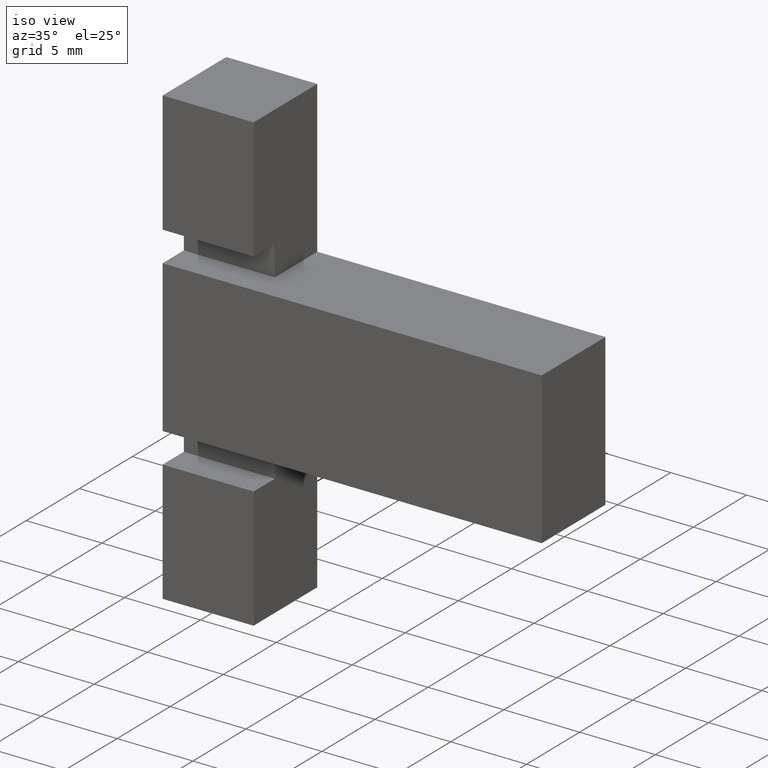
[diagram: clean part render]
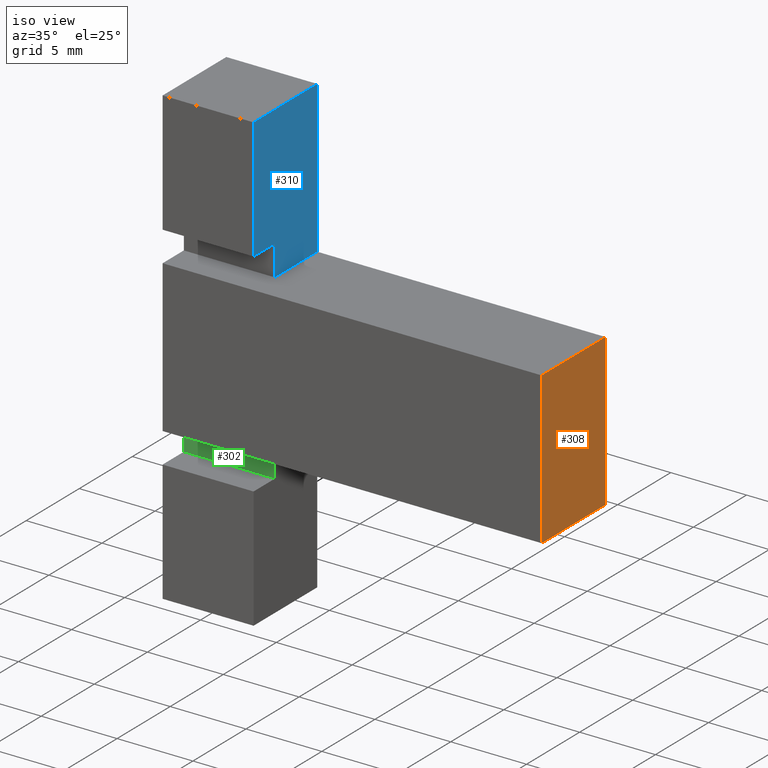
[diagram: same view with three faces highlighted in distinct colors, each labeled with its STEP entity id]
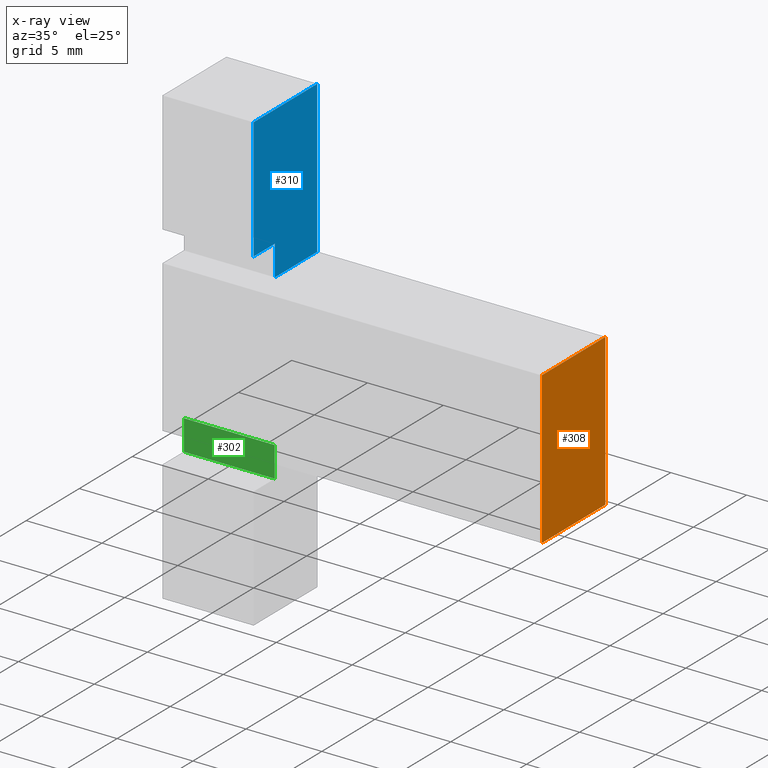
[diagram: x-ray of the same camera — body ghosted, the three highlighted faces saturated]
A machine part, iso view with three faces highlighted in distinct colors.
The next image is the same camera in x-ray (body ghosted, the three faces saturated) — at least one of them is partly hidden behind the body in this view.
Their STEP definitions:

[orange] entity #308 — the highlighted planar face has unit normal (1, 0, -0).
#22=FACE_OUTER_BOUND('',#38,.T.);
#38=EDGE_LOOP('',(#237,#238,#239,#240));
#65=LINE('',#471,#107);
#74=LINE('',#487,#116);
#75=LINE('',#489,#117);
#76=LINE('',#490,#118);
#107=VECTOR('',#385,10.);
#116=VECTOR('',#398,10.);
#117=VECTOR('',#399,10.);
#118=VECTOR('',#400,10.);
#145=VERTEX_POINT('',#467);
#147=VERTEX_POINT('',#470);
#152=VERTEX_POINT('',#486);
#153=VERTEX_POINT('',#488);
#177=EDGE_CURVE('',#147,#145,#65,.T.);
#186=EDGE_CURVE('',#145,#152,#74,.T.);
#187=EDGE_CURVE('',#153,#152,#75,.T.);
#188=EDGE_CURVE('',#147,#153,#76,.T.);
#237=ORIENTED_EDGE('',*,*,#177,.T.);
#238=ORIENTED_EDGE('',*,*,#186,.T.);
#239=ORIENTED_EDGE('',*,*,#187,.F.);
#240=ORIENTED_EDGE('',*,*,#188,.F.);
#292=PLANE('',#344);
#308=ADVANCED_FACE('',(#22),#292,.T.);
#344=AXIS2_PLACEMENT_3D('',#485,#396,#397);
#385=DIRECTION('',(-2.22044604925031E-16,0.,-1.));
#396=DIRECTION('center_axis',(1.,0.,-2.22044604925031E-16));
#397=DIRECTION('ref_axis',(-2.22044604925031E-16,0.,-1.));
#398=DIRECTION('',(0.,1.,0.));
#399=DIRECTION('',(-2.22044604925031E-16,0.,-1.));
#400=DIRECTION('',(0.,1.,0.));
#467=CARTESIAN_POINT('',(12.5,0.,-5.));
#470=CARTESIAN_POINT('',(12.5,0.,5.));
#471=CARTESIAN_POINT('',(12.5,0.,5.));
#485=CARTESIAN_POINT('Origin',(12.5,0.,5.));
#486=CARTESIAN_POINT('',(12.5,6.,-5.));
#487=CARTESIAN_POINT('',(12.5,0.,-5.));
#488=CARTESIAN_POINT('',(12.5,6.,5.));
#489=CARTESIAN_POINT('',(12.5,6.,5.));
#490=CARTESIAN_POINT('',(12.5,0.,5.));

[blue] entity #310 — the highlighted planar face has unit normal (1, 0, -0).
#24=FACE_OUTER_BOUND('',#40,.T.);
#40=EDGE_LOOP('',(#247,#248,#249,#250,#251,#252));
#54=LINE('',#448,#96);
#58=LINE('',#456,#100);
#61=LINE('',#462,#103);
#78=LINE('',#494,#120);
#79=LINE('',#497,#121);
#80=LINE('',#498,#122);
#96=VECTOR('',#368,10.);
#100=VECTOR('',#374,10.);
#103=VECTOR('',#379,10.);
#120=VECTOR('',#404,10.);
#121=VECTOR('',#407,10.);
#122=VECTOR('',#408,10.);
#137=VERTEX_POINT('',#446);
#138=VERTEX_POINT('',#447);
#141=VERTEX_POINT('',#455);
#143=VERTEX_POINT('',#461);
#154=VERTEX_POINT('',#492);
#155=VERTEX_POINT('',#496);
#166=EDGE_CURVE('',#137,#138,#54,.T.);
#170=EDGE_CURVE('',#141,#137,#58,.T.);
#173=EDGE_CURVE('',#143,#141,#61,.T.);
#190=EDGE_CURVE('',#138,#154,#78,.T.);
#191=EDGE_CURVE('',#155,#154,#79,.T.);
#192=EDGE_CURVE('',#143,#155,#80,.T.);
#247=ORIENTED_EDGE('',*,*,#166,.T.);
#248=ORIENTED_EDGE('',*,*,#190,.T.);
#249=ORIENTED_EDGE('',*,*,#191,.F.);
#250=ORIENTED_EDGE('',*,*,#192,.F.);
#251=ORIENTED_EDGE('',*,*,#173,.T.);
#252=ORIENTED_EDGE('',*,*,#170,.T.);
#294=PLANE('',#346);
#310=ADVANCED_FACE('',(#24),#294,.T.);
#346=AXIS2_PLACEMENT_3D('',#495,#405,#406);
#368=DIRECTION('',(-4.44089209850063E-16,1.38777878078145E-16,-1.));
#374=DIRECTION('',(-2.46519032881566E-31,1.,-5.55111512312578E-16));
#379=DIRECTION('',(-4.44089209850063E-16,0.,-1.));
#404=DIRECTION('',(0.,1.,0.));
#405=DIRECTION('center_axis',(1.,0.,-4.44089209850063E-16));
#406=DIRECTION('ref_axis',(-4.44089209850063E-16,0.,-1.));
#407=DIRECTION('',(-4.44089209850063E-16,0.,-1.));
#408=DIRECTION('',(0.,1.,0.));
#446=CARTESIAN_POINT('',(-6.5,2.,7.));
#447=CARTESIAN_POINT('',(-6.5,2.,5.));
#448=CARTESIAN_POINT('',(-6.5,2.,11.));
#455=CARTESIAN_POINT('',(-6.5,-2.44929359829471E-16,7.));
#456=CARTESIAN_POINT('',(-6.5,-2.35922392732846E-15,7.));
#461=CARTESIAN_POINT('',(-6.5,0.,15.));
#462=CARTESIAN_POINT('',(-6.5,0.,15.));
#492=CARTESIAN_POINT('',(-6.5,6.,5.));
#494=CARTESIAN_POINT('',(-6.5,0.,5.));
#495=CARTESIAN_POINT('Origin',(-6.5,0.,15.));
#496=CARTESIAN_POINT('',(-6.5,6.,15.));
#497=CARTESIAN_POINT('',(-6.5,6.,15.));
#498=CARTESIAN_POINT('',(-6.5,0.,15.));

[green] entity #302 — the highlighted planar face has unit normal (0, 1, 0).
#16=FACE_OUTER_BOUND('',#32,.T.);
#32=EDGE_LOOP('',(#205,#206,#207,#208));
#48=LINE('',#435,#90);
#51=LINE('',#441,#93);
#52=LINE('',#443,#94);
#53=LINE('',#444,#95);
#90=VECTOR('',#358,10.);
#93=VECTOR('',#363,10.);
#94=VECTOR('',#364,10.);
#95=VECTOR('',#365,10.);
#131=VERTEX_POINT('',#431);
#133=VERTEX_POINT('',#434);
#135=VERTEX_POINT('',#440);
#136=VERTEX_POINT('',#442);
#160=EDGE_CURVE('',#131,#133,#48,.T.);
#163=EDGE_CURVE('',#135,#131,#51,.T.);
#164=EDGE_CURVE('',#135,#136,#52,.T.);
#165=EDGE_CURVE('',#133,#136,#53,.T.);
#205=ORIENTED_EDGE('',*,*,#163,.F.);
#206=ORIENTED_EDGE('',*,*,#164,.T.);
#207=ORIENTED_EDGE('',*,*,#165,.F.);
#208=ORIENTED_EDGE('',*,*,#160,.F.);
#286=PLANE('',#338);
#302=ADVANCED_FACE('',(#16),#286,.F.);
#338=AXIS2_PLACEMENT_3D('',#439,#361,#362);
#358=DIRECTION('',(-1.,0.,3.70074341541719E-16));
#361=DIRECTION('center_axis',(5.13581318503262E-32,1.,1.38777878078144E-16));
#362=DIRECTION('ref_axis',(-4.44089209850063E-16,1.38777878078144E-16,-1.));
#363=DIRECTION('',(-2.22044604925032E-16,1.38777878078144E-16,-1.));
#364=DIRECTION('',(-1.,0.,3.70074341541719E-16));
#365=DIRECTION('',(0.,-1.38777878078144E-16,1.));
#431=CARTESIAN_POINT('',(-6.50000000000001,2.,-7.));
#434=CARTESIAN_POINT('',(-12.5,2.,-7.));
#435=CARTESIAN_POINT('',(-6.50000000000001,2.,-7.));
#439=CARTESIAN_POINT('Origin',(-6.50000000000001,2.,-5.));
#440=CARTESIAN_POINT('',(-6.50000000000001,2.,-5.));
#441=CARTESIAN_POINT('',(-6.49999999999999,2.,-5.));
#442=CARTESIAN_POINT('',(-12.5,2.,-5.));
#443=CARTESIAN_POINT('',(-6.50000000000001,2.,-5.));
#444=CARTESIAN_POINT('',(-12.5,2.,-10.));